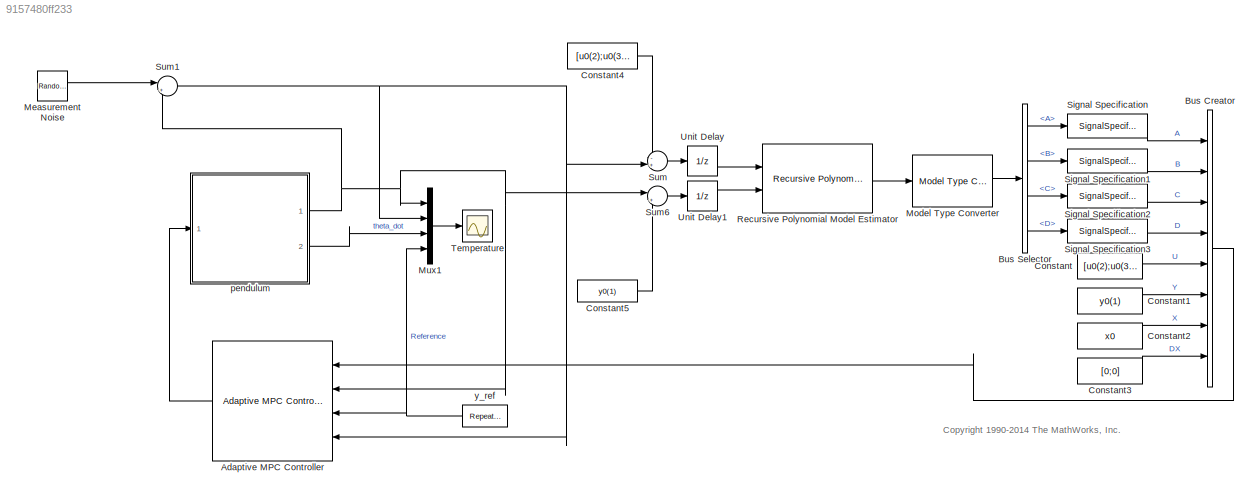
MODEL slx_9157480ff233
KIND model
CONFIG AbsTol = auto
CONFIG EnableMultiTasking = on
CONFIG FixedStep = auto
CONFIG MaxStep = 0.5*Ts
CONFIG MinStep = auto
CONFIG RelTol = 1e-3
CONFIG SampleTimeConstraint = Unconstrained
CONFIG SolverName = ode45
CONFIG StartTime = 0
CONFIG StopTime = 150
BLOCK [Reference] Adaptive MPC Controller  REF=mpclib/Adaptive MPC Controller  (lib defined in mdl_ae329e0e0455)
  Ports = [4, 1]
  SCDEnableBlockLinearizationSpecification = on
  SourceBlock = mpclib/Adaptive MPC Controller
  SourceProductBaseCode = MP
  SourceType = Adaptive MPC
BLOCK [BusCreator] Bus Creator
  DisplayOption = bar
  InheritFromInputs = on
  Inputs = 8
  Ports = [8, 1]
BLOCK [BusSelector] Bus Selector
  OutputSignals = A,B,C,D
  Ports = [1, 4]
BLOCK [Constant] Constant
  Value = [u0(2);u0(3)]
  VectorParams1D = off
BLOCK [Constant] Constant1
  Value = y0(1)
  VectorParams1D = off
BLOCK [Constant] Constant2
  Value = x0
  VectorParams1D = off
BLOCK [Constant] Constant3
  Value = [0;0]
  VectorParams1D = off
BLOCK [Constant] Constant4
  Value = [u0(2);u0(3)]
BLOCK [Constant] Constant5
  Value = y0(1)
BLOCK [RandomNumber] Measurement Noise
  SampleTime = Ts
  Seed = 12345
  Variance = 0.01
BLOCK [Reference] Model Type Converter  REF=slident/Estimators/Model Type Converter  (lib defined in mdl_f7d4911ca73a)
  Ports = [1, 1]
  SourceBlock = slident/Estimators/Model Type Converter
  SourceProductBaseCode = ID
  SourceType = idModelTypeConverter
BLOCK [Mux] Mux1
  DisplayOption = bar
  Ports = [4, 1]
BLOCK [Reference] Recursive Polynomial Model Estimator  REF=slident/Estimators/Recursive Polynomial Model Estimator  (lib defined in mdl_f7d4911ca73a)
  Ports = [2, 1]
  SourceBlock = slident/Estimators/Recursive Polynomial Model Estimator
  SourceProductBaseCode = ID
  SourceType = idEstimatorsPolyModel
BLOCK [SignalSpecification] Signal Specification
  Dimensions = [2 2]
BLOCK [SignalSpecification] Signal Specification1
  Dimensions = [2 2]
BLOCK [SignalSpecification] Signal Specification2
  Dimensions = [1 2]
BLOCK [SignalSpecification] Signal Specification3
  Dimensions = [1 2]
BLOCK [Sum] Sum
  Inputs = -+|
  Ports = [2, 1]
BLOCK [Sum] Sum1
  Inputs = |++
  Ports = [2, 1]
  SampleTime = Ts
BLOCK [Sum] Sum6
  Inputs = |+-
  Ports = [2, 1]
BLOCK [Scope] Temperature
  Floating = off
  NumInputPorts = 1
  Ports = [1]
  ScopeSpecificationString = Simulink.scopes.TimeScopeBlockCfg('CurrentConfiguration', extmgr.ConfigurationSet(extmgr.Configuration('Core','General UI',true),extmgr.Configuration('Core','Source UI',true),extmgr.Configuration('Sources','WiredSimulink',true,'DataLoggingSaveFormat','Array','DataLoggingDecimation','1','DataLoggingDecimateData',true),extmgr.Configuration('Visuals','Time Domain',true,'SerializedDisplays',{struct('M...<+1617ch>
BLOCK [UnitDelay] Unit Delay
  HasFrameUpgradeWarning = on
  InitialCondition = [0;0]
  SampleTime = Ts
BLOCK [UnitDelay] Unit Delay1
  HasFrameUpgradeWarning = on
  SampleTime = Ts
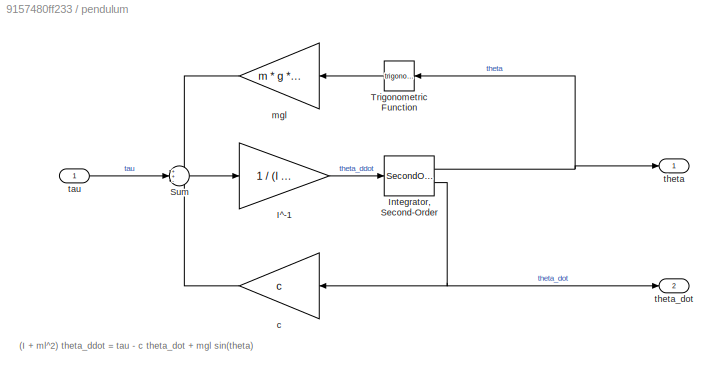
BLOCK [SubSystem] pendulum
  Ports = [1, 2]
  RequestExecContextInheritance = off
BLOCK [Gain] pendulum/I^-1
  Gain = 1 / (l + m * l^2)
BLOCK [SecondOrderIntegrator] pendulum/Integrator, Second-Order
  ICDXDT = theta_dot0
  ICX = theta0
  LowerLimitX = 0
  Ports = [1, 2]
  StateNameDXDT = 'theta_dot'
  StateNameX = 'theta'
  UpperLimitX = 1
BLOCK [Sum] pendulum/Sum
  Inputs = ++-
  Ports = [3, 1]
BLOCK [Trigonometry] pendulum/Trigonometric Function
  NameLocation = top
  Ports = [1, 1]
BLOCK [Gain] pendulum/c
  Gain = c
  NameLocation = top
BLOCK [Gain] pendulum/mgl
  Gain = m * g * l
  NameLocation = top
BLOCK [Inport] pendulum/tau
BLOCK [Outport] pendulum/theta
  VectorParamsAs1DForOutWhenUnconnected = off
BLOCK [Outport] pendulum/theta_dot
  Port = 2
  VectorParamsAs1DForOutWhenUnconnected = off
BLOCK [Reference] y_ref  REF=simulink/Sources/Repeating
Sequence
Interpolated
  Ports = [0, 1]
  SourceBlock = simulink/Sources/Repeating\nSequence\nInterpolated
  SourceProductBaseCode = SL
  SourceType = Repeating Sequence Interpolated
ANNOTATION (root): <copyright redacted>
ANNOTATION pendulum: (I + ml^2) theta_ddot = tau - c theta_dot + mgl sin(theta)
LINE Adaptive MPC Controller:1 -> pendulum:1
LINE Bus Creator:1 -> Adaptive MPC Controller:1
LINE Bus Selector:1 -> Signal Specification:1
LINE Bus Selector:2 -> Signal Specification1:1
LINE Bus Selector:3 -> Signal Specification2:1
LINE Bus Selector:4 -> Signal Specification3:1
LINE Constant1:1 -> Bus Creator:6
LINE Constant2:1 -> Bus Creator:7
LINE Constant3:1 -> Bus Creator:8
LINE Constant4:1 -> Sum:1
LINE Constant5:1 -> Sum6:2
LINE Constant:1 -> Bus Creator:5
LINE Measurement Noise:1 -> Sum1:1
LINE Model Type Converter:1 -> Bus Selector:1
LINE Mux1:1 -> Temperature:1
LINE Recursive Polynomial Model Estimator:1 -> Model Type Converter:1
LINE Signal Specification1:1 -> Bus Creator:2
LINE Signal Specification2:1 -> Bus Creator:3
LINE Signal Specification3:1 -> Bus Creator:4
LINE Signal Specification:1 -> Bus Creator:1
NET Sum1:1 -> Adaptive MPC Controller:4, Mux1:2, Sum:2
LINE Sum6:1 -> Unit Delay1:1
LINE Sum:1 -> Unit Delay:1
LINE Unit Delay1:1 -> Recursive Polynomial Model Estimator:2
LINE Unit Delay:1 -> Recursive Polynomial Model Estimator:1
LINE pendulum/I^-1:1 -> pendulum/Integrator, Second-Order:1
NET pendulum/Integrator, Second-Order:1 -> pendulum/Trigonometric Function:1, pendulum/theta:1
NET pendulum/Integrator, Second-Order:2 -> pendulum/c:1, pendulum/theta_dot:1
LINE pendulum/Sum:1 -> pendulum/I^-1:1
LINE pendulum/Trigonometric Function:1 -> pendulum/mgl:1
LINE pendulum/c:1 -> pendulum/Sum:3
LINE pendulum/mgl:1 -> pendulum/Sum:1
LINE pendulum/tau:1 -> pendulum/Sum:2
NET pendulum:1 -> Adaptive MPC Controller:2, Mux1:1, Sum1:2, Sum6:1
LINE pendulum:2 -> Mux1:3
NET y_ref:1 -> Adaptive MPC Controller:3, Mux1:4
note: NET lines group one-source signal fan-out (src -> all destinations, sorted); 1:1 wires keep LINE
